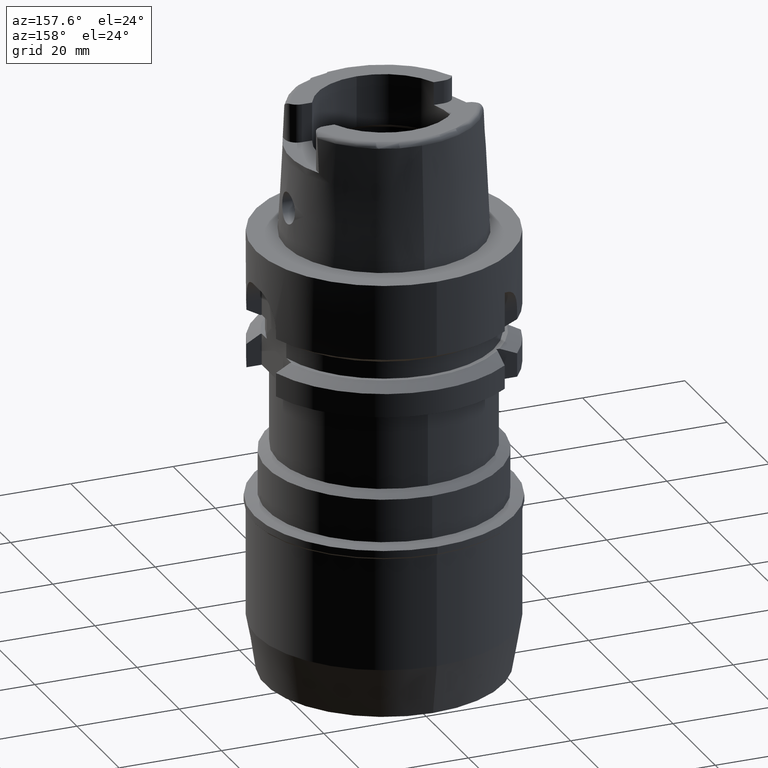
[diagram: clean part render]
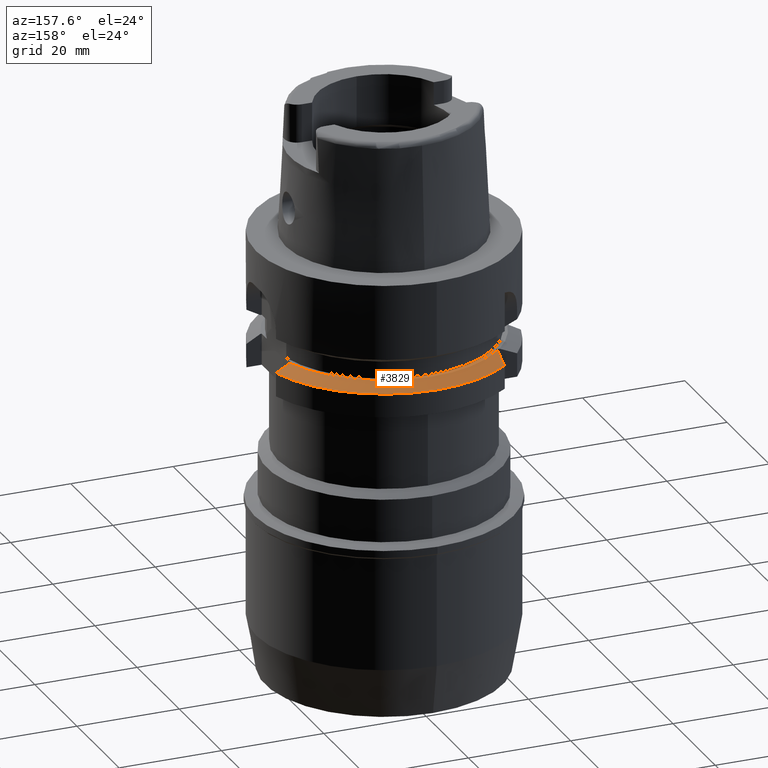
[diagram: same view with one face highlighted and labeled with its STEP entity id]
A machine part, auxiliary view. The second image highlights one B-rep face of the part: STEP entity #3829.
In plain terms, the highlighted conical surface has half-angle 60 deg.
Its self-contained STEP definition (entity closure, byte-faithful):
#1321=CARTESIAN_POINT('',(2.127562137683E1,7.000000354775E0,-1.9875E1));
#1322=CARTESIAN_POINT('',(2.157872870024E1,7.000000354775E0,-2.004123281359E1));
#1323=CARTESIAN_POINT('',(2.218461909894E1,6.999999979349E0,-2.037425457525E1));
#1324=CARTESIAN_POINT('',(2.309276768762E1,6.999999540117E0,-2.087505269349E1));
#1325=CARTESIAN_POINT('',(2.369763807837E1,7.000001086828E0,-2.120992221074E1));
#1326=CARTESIAN_POINT('',(2.399999968301E1,7.000001086828E0,-2.137750801577E1));
#1547=CARTESIAN_POINT('',(0.E0,0.E0,-1.9875E1));
#1548=DIRECTION('',(0.E0,0.E0,-1.E0));
#1549=DIRECTION('',(-6.920385790157E-1,7.218605164115E-1,0.E0));
#1550=AXIS2_PLACEMENT_3D('',#1547,#1548,#1549);
#1555=CARTESIAN_POINT('',(0.E0,0.E0,-1.9875E1));
#1556=DIRECTION('',(0.E0,0.E0,-1.E0));
#1557=DIRECTION('',(0.E0,1.E0,0.E0));
#1558=AXIS2_PLACEMENT_3D('',#1555,#1556,#1557);
#1608=CARTESIAN_POINT('',(-1.549998696071E1,1.616805732866E1,-1.9875E1));
#1609=CARTESIAN_POINT('',(-1.549998696071E1,1.654015613063E1,
-2.003007862426E1));
#1610=CARTESIAN_POINT('',(-1.550000794862E1,1.729171952510E1,
-2.034856809687E1));
#1611=CARTESIAN_POINT('',(-1.549999173879E1,1.844074549736E1,
-2.084959212498E1));
#1612=CARTESIAN_POINT('',(-1.550001397709E1,1.922111117178E1,
-2.119910730272E1));
#1613=CARTESIAN_POINT('',(-1.550001397709E1,1.961503420108E1,
-2.137755022037E1));
#1618=CARTESIAN_POINT('',(0.E0,0.E0,-2.137749907476E1));
#1619=DIRECTION('',(0.E0,0.E0,-1.E0));
#1620=DIRECTION('',(-6.200000000001E-1,7.846018098373E-1,0.E0));
#1621=AXIS2_PLACEMENT_3D('',#1618,#1619,#1620);
#1626=CARTESIAN_POINT('',(0.E0,0.E0,-2.137749907476E1));
#1627=DIRECTION('',(0.E0,0.E0,-1.E0));
#1628=DIRECTION('',(0.E0,1.E0,0.E0));
#1629=AXIS2_PLACEMENT_3D('',#1626,#1627,#1628);
#2518=CARTESIAN_POINT('',(-1.550001397709E1,1.961503420108E1,
-2.137755022037E1));
#2519=VERTEX_POINT('',#2518);
#2520=VERTEX_POINT('',#1608);
#2538=CARTESIAN_POINT('',(2.399999968301E1,7.000001086828E0,-2.137750801577E1));
#2539=VERTEX_POINT('',#2538);
#2540=CARTESIAN_POINT('',(0.E0,2.5E1,-2.137749907476E1));
#2541=VERTEX_POINT('',#2540);
#2586=VERTEX_POINT('',#1321);
#2587=CARTESIAN_POINT('',(0.E0,2.239759526419E1,-1.9875E1));
#2588=VERTEX_POINT('',#2587);
#3816=CARTESIAN_POINT('',(0.E0,0.E0,-2.062624953738E1));
#3817=DIRECTION('',(0.E0,0.E0,-1.E0));
#3818=DIRECTION('',(0.E0,-1.E0,0.E0));
#3819=AXIS2_PLACEMENT_3D('',#3816,#3817,#3818);
#3820=CONICAL_SURFACE('',#3819,2.369879763210E1,6.E1);
#3821=ORIENTED_EDGE('',*,*,#3590,.T.);
#3822=ORIENTED_EDGE('',*,*,#3611,.T.);
#3823=ORIENTED_EDGE('',*,*,#3609,.T.);
#3824=ORIENTED_EDGE('',*,*,#3626,.F.);
#3825=ORIENTED_EDGE('',*,*,#3800,.F.);
#3826=ORIENTED_EDGE('',*,*,#3798,.F.);
#3827=EDGE_LOOP('',(#3821,#3822,#3823,#3824,#3825,#3826));
#3828=FACE_OUTER_BOUND('',#3827,.F.);
#1327=B_SPLINE_CURVE_WITH_KNOTS('',3,(#1321,#1322,#1323,#1324,#1325,#1326),
.UNSPECIFIED.,.F.,.F.,(4,1,1,4),(0.E0,3.333333333333E-1,6.666666666667E-1,1.E0),
.UNSPECIFIED.);
#1551=CIRCLE('',#1550,2.239759526419E1);
#1559=CIRCLE('',#1558,2.239759526419E1);
#1614=B_SPLINE_CURVE_WITH_KNOTS('',3,(#1608,#1609,#1610,#1611,#1612,#1613),
.UNSPECIFIED.,.F.,.F.,(4,1,1,4),(0.E0,3.333333333333E-1,6.666666666667E-1,1.E0),
.UNSPECIFIED.);
#1622=CIRCLE('',#1621,2.5E1);
#1630=CIRCLE('',#1629,2.5E1);
#3590=EDGE_CURVE('',#2520,#2519,#1614,.T.);
#3609=EDGE_CURVE('',#2541,#2539,#1630,.T.);
#3611=EDGE_CURVE('',#2519,#2541,#1622,.T.);
#3626=EDGE_CURVE('',#2586,#2539,#1327,.T.);
#3798=EDGE_CURVE('',#2520,#2588,#1551,.T.);
#3800=EDGE_CURVE('',#2588,#2586,#1559,.T.);
#3829=ADVANCED_FACE('',(#3828),#3820,.T.);